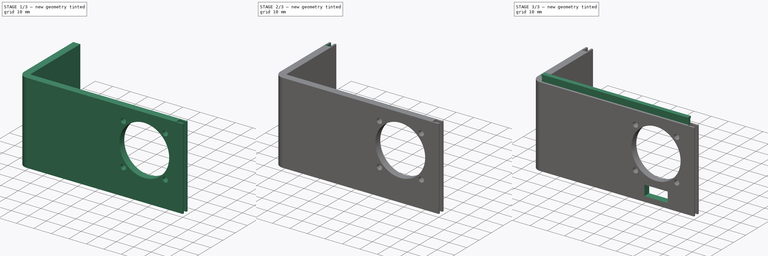
[diagram: build sequence overview — one tinted view per stage of 3, left to right]
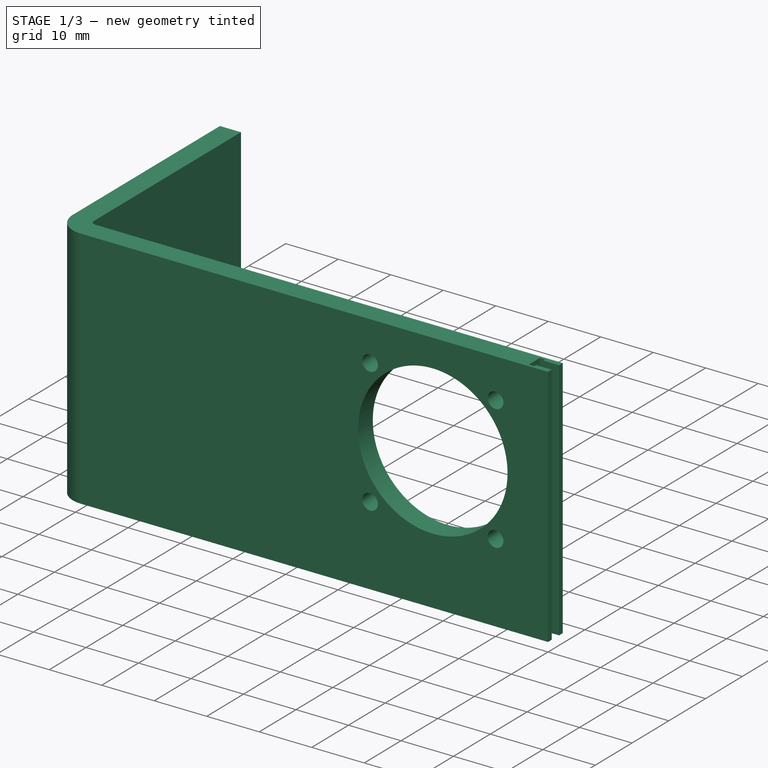
[diagram: stage 1 of 3 — iso view after this stage's code; geometry added in this stage tinted green]
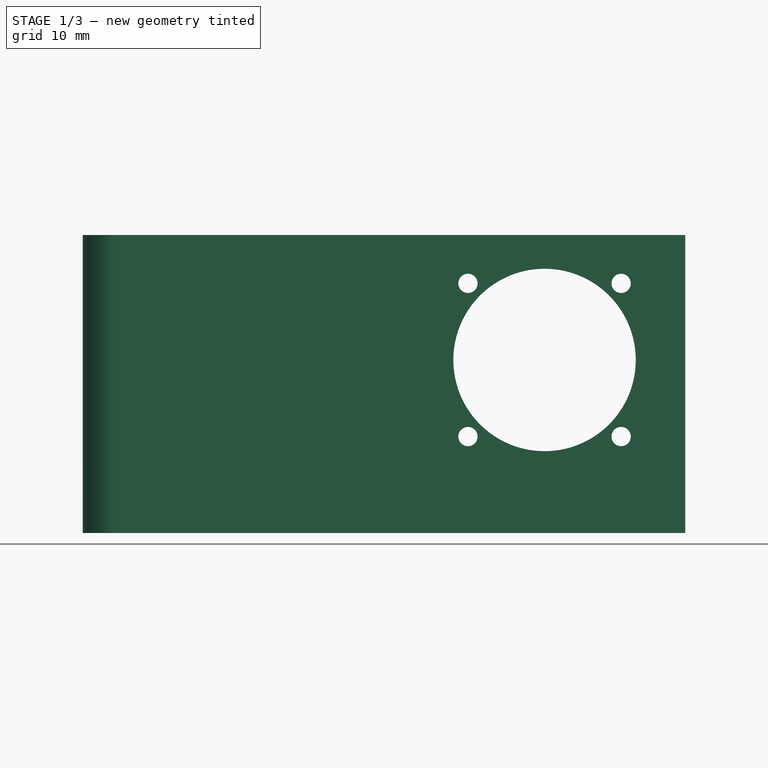
[diagram: stage 1 of 3 — front view after this stage's code; geometry added in this stage tinted green]
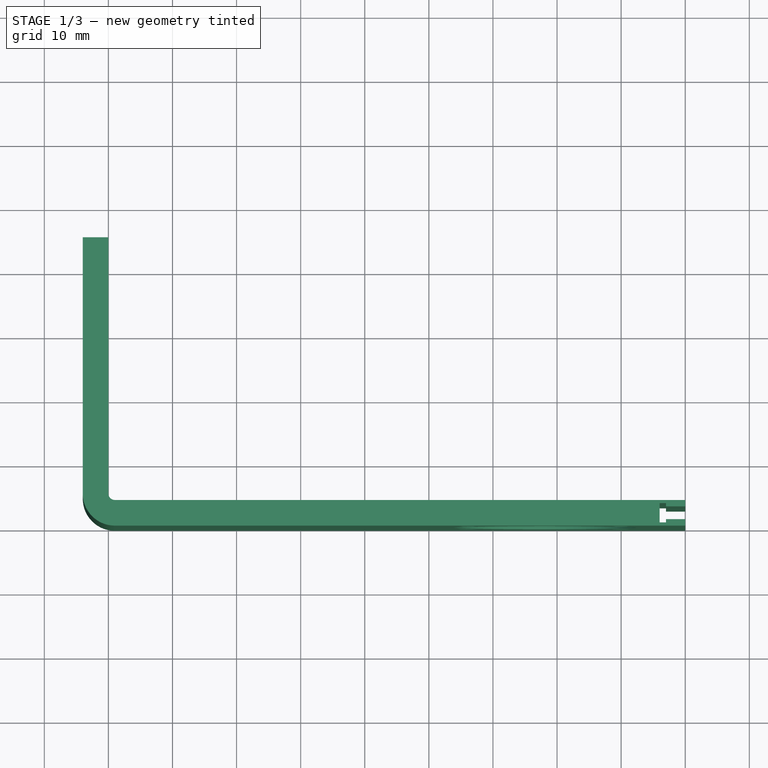
[diagram: stage 1 of 3 — top view after this stage's code; geometry added in this stage tinted green]
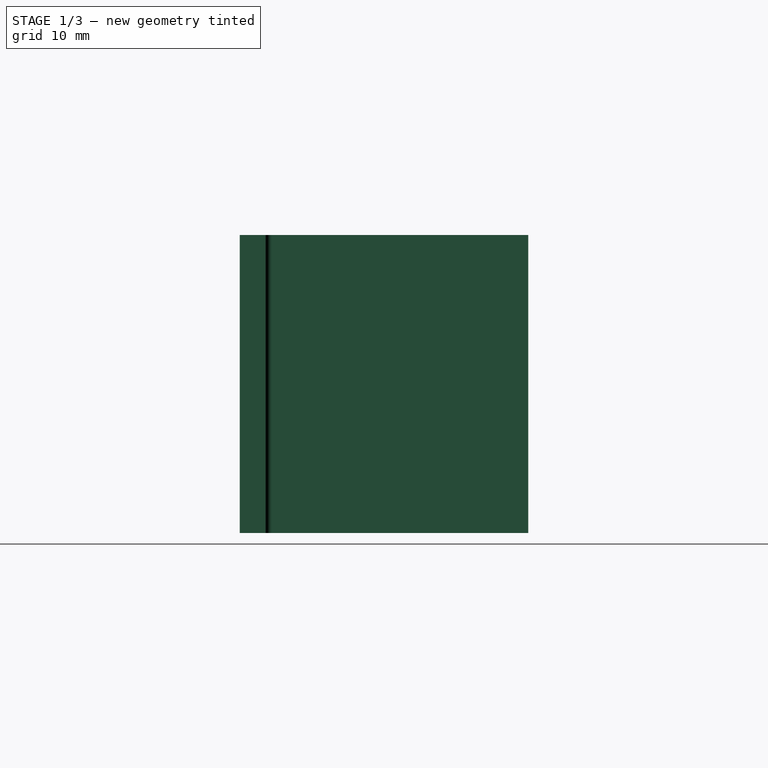
[diagram: stage 1 of 3 — right view after this stage's code; geometry added in this stage tinted green]
FCSTD DOCUMENT  (FreeCAD 1.0R38641 +468 (Git))
Label: focuser-box-side-r
License: All rights reserved
LicenseURL: https://en.wikipedia.org/wiki/All_rights_reserved
objects: Sketcher::SketchObject×8, PartDesign::Pocket×6, PartDesign::Pad×2, PartDesign::Body×1
note: 41 computed .brp shape members not serialized (recipe doc carries the construction recipe); baked Part::Feature solids carry a one-line shape summary decoded from their .brp

FEATURE [Sketcher::SketchObject] Sketch  label="front-space"
  ArcFitTolerance = 1e-06
  AttachmentSupport = -> [XY_Plane013]
  FullyConstrained = true
  MakeInternals = false
  MapMode = 5
  sketch-geometry (4):
    g0: LineSegment StartX=-91 StartY=45 StartZ=0 EndX=-91 EndY=10 EndZ=0
    g1: LineSegment StartX=-91 StartY=10 StartZ=0 EndX=-93 EndY=10 EndZ=0
    g2: LineSegment StartX=-93 StartY=10 StartZ=0 EndX=-93 EndY=45 EndZ=0
    g3: LineSegment StartX=-93 StartY=45 StartZ=0 EndX=-91 EndY=45 EndZ=0
  constraints (12):
    c: Coincident(g0,g1)
    c: Coincident(g1,g2)
    c: Coincident(g2,g3)
    c: Coincident(g3,g0)
    c: Vertical(g0)
    c: Vertical(g2)
    c: Horizontal(g1)
    c: Horizontal(g3)
    c: Distance(g0,g2) = 2
    c: Distance(g1,g3) = 35
    c: DistanceY(g-1,g1) = 10
    c: DistanceX(g0,g-1) = 91
FEATURE [Sketcher::SketchObject] Sketch112  label="r-side-wall"
  ArcFitTolerance = 1e-06
  AttachmentSupport = -> [XY_Plane013]
  FullyConstrained = true
  MakeInternals = false
  MapMode = 5
  sketch-geometry (8):
    g0: LineSegment StartX=0 StartY=0 StartZ=0 EndX=-89 EndY=0 EndZ=0
    g1: LineSegment StartX=0 StartY=4 StartZ=0 EndX=-89 EndY=4 EndZ=0
    g2: LineSegment StartX=0 StartY=4 StartZ=0 EndX=0 EndY=0 EndZ=0
    g3: ArcOfCircle CenterX=-89 CenterY=5 CenterZ=0 NormalX=0 NormalY=0 NormalZ=1 AngleXU=0 Radius=1 StartAngle=3.14159 EndAngle=4.71239
    g4: ArcOfCircle CenterX=-89 CenterY=5 CenterZ=0 NormalX=0 NormalY=0 NormalZ=1 AngleXU=0 Radius=5 StartAngle=3.14159 EndAngle=4.71239
    g5: LineSegment StartX=-94 StartY=5 StartZ=0 EndX=-94 EndY=45 EndZ=0
    g6: LineSegment StartX=-90 StartY=5 StartZ=0 EndX=-90 EndY=45 EndZ=0
    g7: LineSegment StartX=-94 StartY=45 StartZ=0 EndX=-90 EndY=45 EndZ=0
  constraints (25):
    c: Distance(g0) = 89
    c: Coincident(g0,g-1)
    c: PointOnObject(g0,g-1)
    c: Distance(g1) = 89
    c: Horizontal(g1)
    c: PointOnObject(g1,g-2)
    c: Coincident(g2,g1)
    c: Coincident(g2,g0)
    c: DistanceY(g0,g1) = 4
    c: Angle(g3) = 1.5708
    c: Coincident(g3,g1)
    c: Angle(g4) = 1.5708
    c: Coincident(g4,g0)
    c: Distance(g5) = 40
    c: Coincident(g5,g4)
    c: Vertical(g5)
    c: Distance(g6) = 40
    c: Coincident(g6,g3)
    c: Vertical(g6)
    c: DistanceX(g3,g3) = 1
    c: DistanceY(g0,g3) = 5
    c: DistanceX(g4,g3) = 5
    c: DistanceY(g0,g4) = 5
    c: Coincident(g7,g5)
    c: Coincident(g7,g6)
FEATURE [PartDesign::Pad] Pad
  Direction = (0,0,1)
  Length = 46.5
  Length2 = 10
  Profile = -> Sketch112
  ReferenceAxis = -> Sketch112 [N_Axis]
  Refine = true
  Suppressed = false
  Type = 0
FEATURE [Sketcher::SketchObject] Sketch114  label="side-canal"
  ArcFitTolerance = 1e-06
  AttachmentSupport = -> [XY_Plane013]
  FullyConstrained = true
  MakeInternals = false
  MapMode = 5
  sketch-geometry (8):
    g0: LineSegment StartX=-3 StartY=3 StartZ=0 EndX=-3 EndY=1 EndZ=0
    g1: LineSegment StartX=-3 StartY=1 StartZ=0 EndX=0 EndY=1 EndZ=0
    g2: LineSegment StartX=0 StartY=1 StartZ=0 EndX=0 EndY=3 EndZ=0
    g3: LineSegment StartX=0 StartY=3 StartZ=0 EndX=-3 EndY=3 EndZ=0
    g4: LineSegment StartX=-4 StartY=3.5 StartZ=0 EndX=-4 EndY=0.5 EndZ=0
    g5: LineSegment StartX=-4 StartY=0.5 StartZ=0 EndX=-3 EndY=0.5 EndZ=0
    g6: LineSegment StartX=-3 StartY=0.5 StartZ=0 EndX=-3 EndY=3.5 EndZ=0
    g7: LineSegment StartX=-3 StartY=3.5 StartZ=0 EndX=-4 EndY=3.5 EndZ=0
  constraints (24):
    c: Coincident(g0,g1)
    c: Coincident(g1,g2)
    c: Coincident(g2,g3)
    c: Coincident(g3,g0)
    c: Vertical(g0)
    c: Vertical(g2)
    c: Horizontal(g1)
    c: Horizontal(g3)
    c: Distance(g0,g2) = 3
    c: Distance(g1,g3) = 2
    c: DistanceY(g-1,g1) = 1
    c: DistanceX(g1,g-1) = 0
    c: Coincident(g4,g5)
    c: Coincident(g5,g6)
    c: Coincident(g6,g7)
    c: Coincident(g7,g4)
    c: Vertical(g4)
    c: Vertical(g6)
    c: Horizontal(g5)
    c: Horizontal(g7)
    c: Distance(g4,g6) = 1
    c: Distance(g5,g7) = 3
    c: DistanceY(g0,g6) = 0.5
    c: DistanceX(g6,g0) = 0
FEATURE [PartDesign::Pocket] Pocket
  BaseFeature = -> Pad
  Direction = (0,0,-1)
  Length = 5
  Length2 = 5
  Profile = -> Sketch114
  ReferenceAxis = -> Sketch114 [N_Axis]
  Refine = true
  Reversed = true
  Suppressed = false
  Type = 1
FEATURE [Sketcher::SketchObject] Sketch116  label="fan"
  ArcFitTolerance = 1e-06
  AttachmentSupport = -> [XZ_Plane013]
  FullyConstrained = true
  MakeInternals = false
  MapMode = 5
  Placement = pos=(0,0,0) rot=(1,0,0;1.5708rad)
  sketch-geometry (5):
    g0: Circle CenterX=-21.95 CenterY=27 CenterZ=0 NormalX=0 NormalY=0 NormalZ=1 AngleXU=0 Radius=14.23
    g1: Circle CenterX=-10 CenterY=38.95 CenterZ=0 NormalX=0 NormalY=0 NormalZ=1 AngleXU=0 Radius=1.5
    g2: Circle CenterX=-33.9 CenterY=38.95 CenterZ=0 NormalX=0 NormalY=0 NormalZ=1 AngleXU=0 Radius=1.5
    g3: Circle CenterX=-33.9 CenterY=15.05 CenterZ=0 NormalX=0 NormalY=0 NormalZ=1 AngleXU=0 Radius=1.5
    g4: Circle CenterX=-10 CenterY=15.05 CenterZ=0 NormalX=0 NormalY=0 NormalZ=1 AngleXU=0 Radius=1.5
  constraints (15):
    c: Diameter(g0) = 28.46
    c: DistanceY(g-1,g0) = 27
    c: DistanceX(g0,g-1) = 21.95
    c: Diameter(g1) = 3
    c: DistanceX(g1,g-1) = 10
    c: DistanceY(g-1,g1) = 38.95
    c: Diameter(g2) = 3
    c: DistanceY(g1,g2) = 0
    c: DistanceX(g2,g-1) = 33.9
    c: Diameter(g3) = 3
    c: DistanceX(g3,g2) = 0
    c: Diameter(g4) = 3
    c: DistanceX(g1,g4) = 0
    c: DistanceY(g-1,g3) = 15.05
    c: DistanceY(g3,g4) = 0
FEATURE [PartDesign::Pocket] Pocket001
  BaseFeature = -> Pocket
  Direction = (0,1,-2e-16)
  Length = 5
  Length2 = 5
  Profile = -> Sketch116
  ReferenceAxis = -> Sketch116 [N_Axis]
  Refine = true
  Suppressed = false
  Type = 0
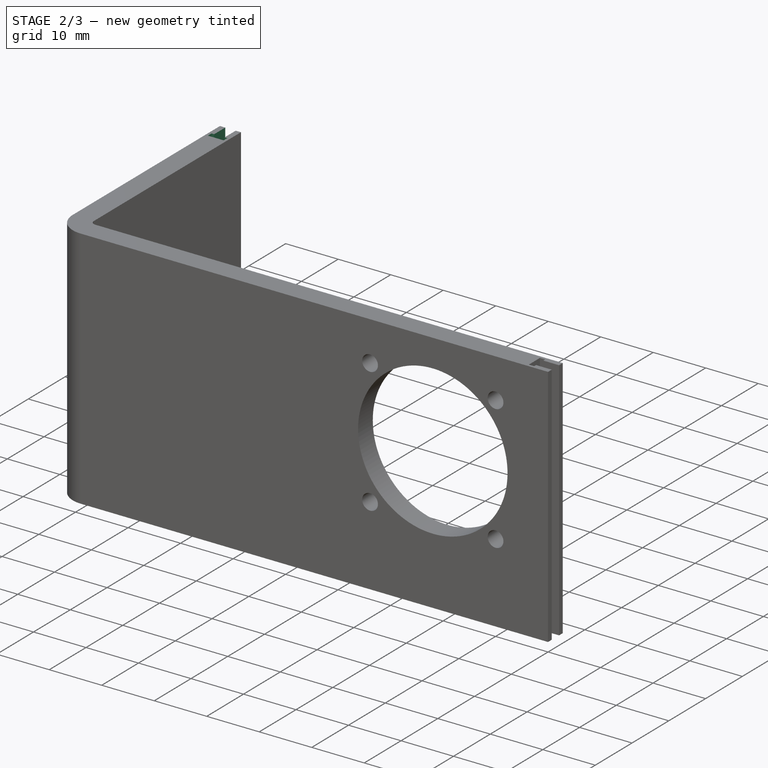
[diagram: stage 2 of 3 — iso view after this stage's code; geometry added in this stage tinted green]
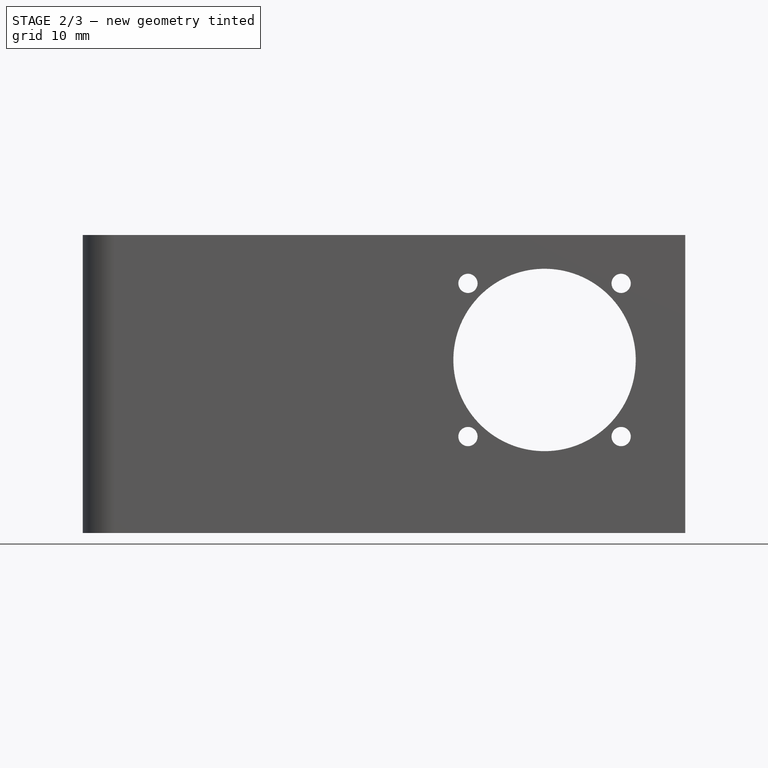
[diagram: stage 2 of 3 — front view after this stage's code; geometry added in this stage tinted green]
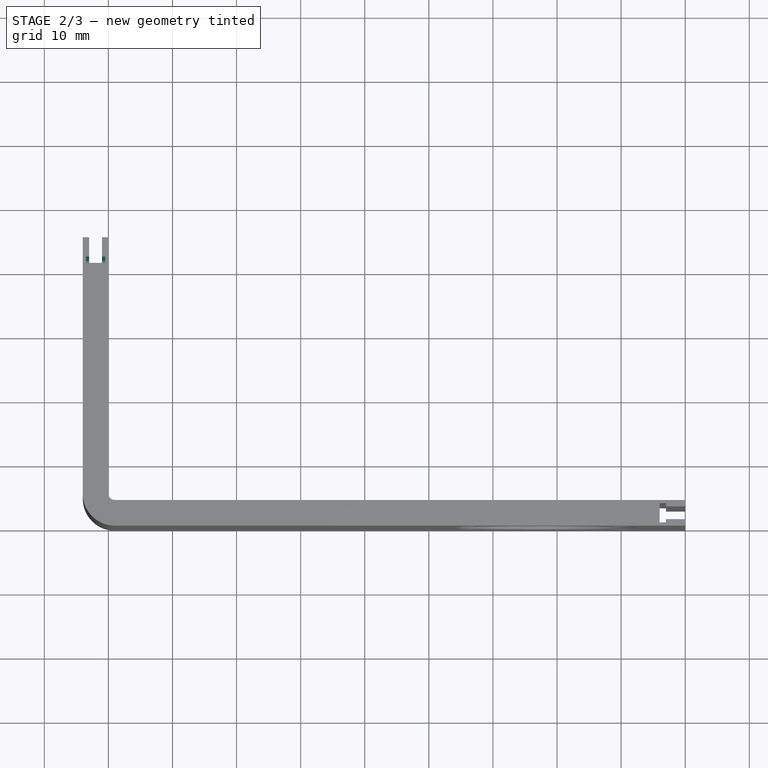
[diagram: stage 2 of 3 — top view after this stage's code; geometry added in this stage tinted green]
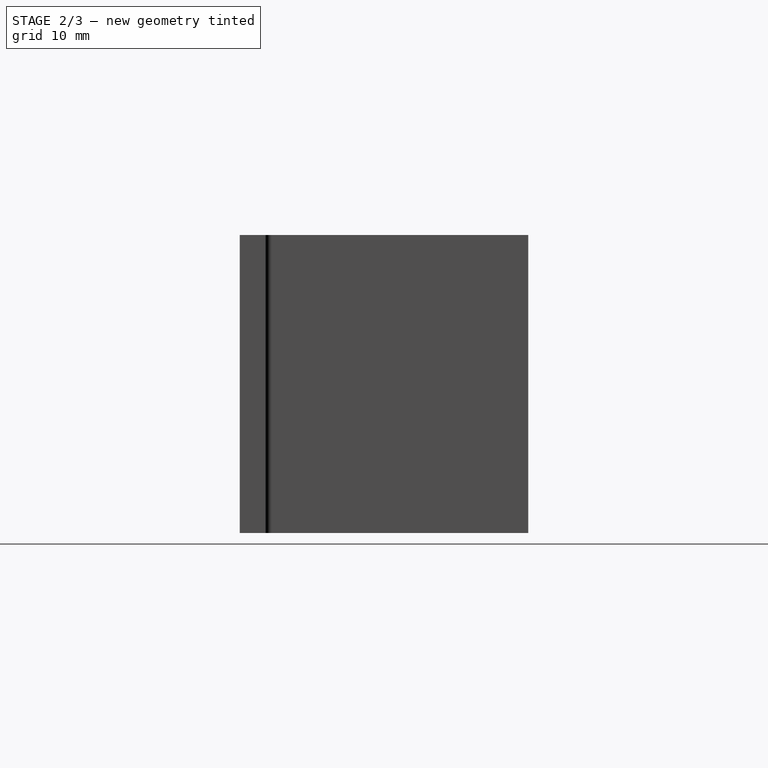
[diagram: stage 2 of 3 — right view after this stage's code; geometry added in this stage tinted green]
FEATURE [PartDesign::Pocket] Pocket002
  BaseFeature = -> Pocket001
  Direction = (0,0,-1)
  Length = 7
  Length2 = 5
  Profile = -> Sketch
  ReferenceAxis = -> Sketch [N_Axis]
  Refine = true
  Reversed = true
  Suppressed = false
  Type = 0
FEATURE [Sketcher::SketchObject] Sketch117  label="front-canal"
  ArcFitTolerance = 1e-06
  FullyConstrained = true
  MakeInternals = false
  MapMode = 5
  sketch-geometry (8):
    g0: LineSegment StartX=-91 StartY=45 StartZ=0 EndX=-91 EndY=42 EndZ=0
    g1: LineSegment StartX=-91 StartY=42 StartZ=0 EndX=-93 EndY=42 EndZ=0
    g2: LineSegment StartX=-93 StartY=42 StartZ=0 EndX=-93 EndY=45 EndZ=0
    g3: LineSegment StartX=-93 StartY=45 StartZ=0 EndX=-91 EndY=45 EndZ=0
    g4: LineSegment StartX=-90.5 StartY=42 StartZ=0 EndX=-93.5 EndY=42 EndZ=0
    g5: LineSegment StartX=-93.5 StartY=42 StartZ=0 EndX=-93.5 EndY=41 EndZ=0
    g6: LineSegment StartX=-93.5 StartY=41 StartZ=0 EndX=-90.5 EndY=41 EndZ=0
    g7: LineSegment StartX=-90.5 StartY=41 StartZ=0 EndX=-90.5 EndY=42 EndZ=0
  constraints (24):
    c: Coincident(g0,g1)
    c: Coincident(g1,g2)
    c: Coincident(g2,g3)
    c: Coincident(g3,g0)
    c: Vertical(g0)
    c: Vertical(g2)
    c: Horizontal(g1)
    c: Horizontal(g3)
    c: Distance(g0,g2) = 2
    c: Distance(g1,g3) = 3
    c: DistanceY(g-1,g2) = 45
    c: Coincident(g4,g5)
    c: Coincident(g5,g6)
    c: Coincident(g6,g7)
    c: Coincident(g7,g4)
    c: Horizontal(g4)
    c: Horizontal(g6)
    c: Vertical(g5)
    c: Vertical(g7)
    c: Distance(g5,g7) = 3
    c: Distance(g4,g6) = 1
    c: DistanceY(g4,g1) = 0
    c: DistanceX(g4,g1) = 0.5
    c: DistanceX(g0,g-1) = 91
FEATURE [PartDesign::Pocket] Pocket003
  BaseFeature = -> Pocket002
  Direction = (0,0,-1)
  Length = 47
  Length2 = -7
  Profile = -> Sketch117
  ReferenceAxis = -> Sketch117 [N_Axis]
  Refine = true
  Reversed = true
  Suppressed = false
  Type = 4
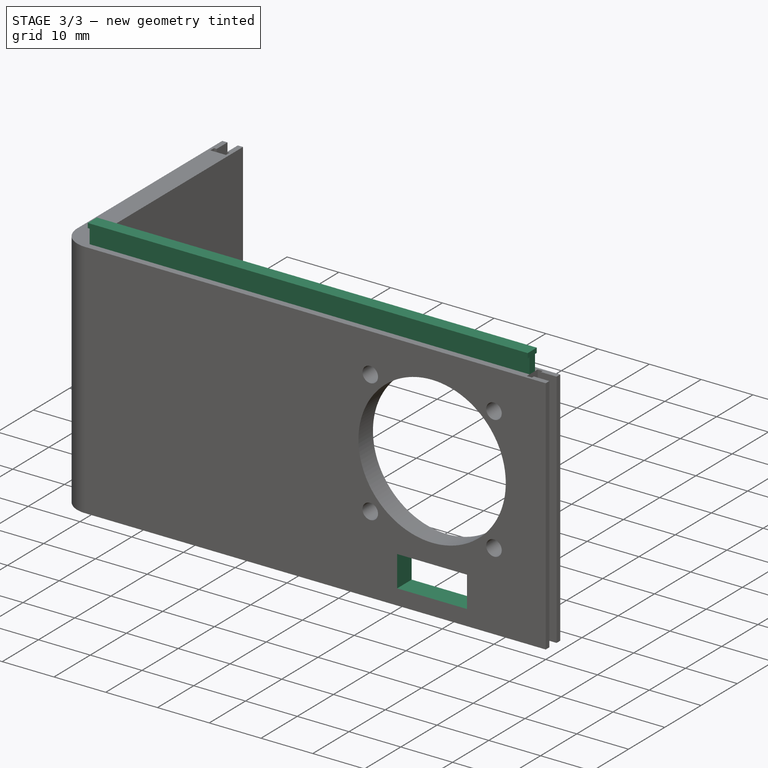
[diagram: stage 3 of 3 — iso view after this stage's code; geometry added in this stage tinted green]
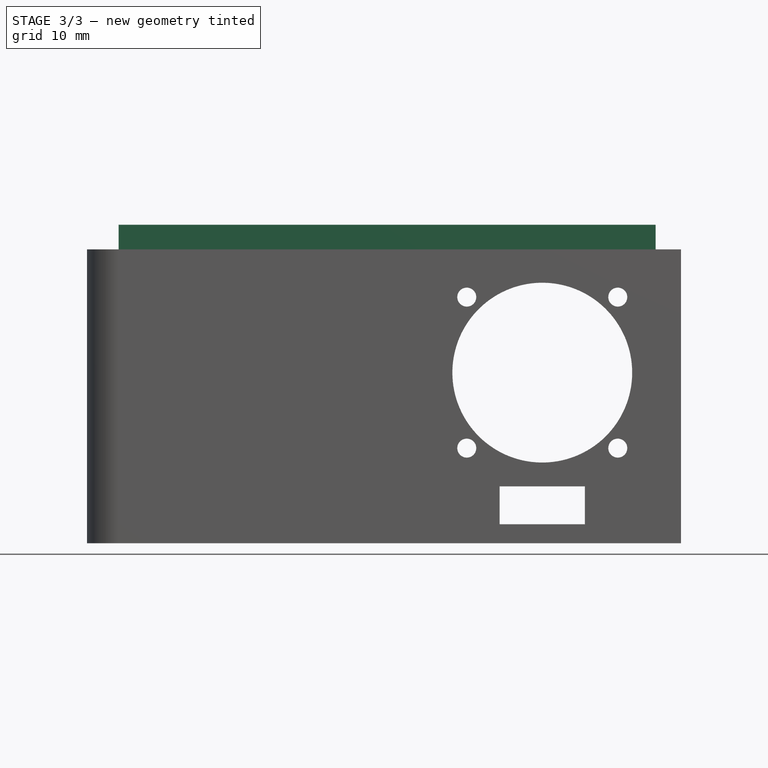
[diagram: stage 3 of 3 — front view after this stage's code; geometry added in this stage tinted green]
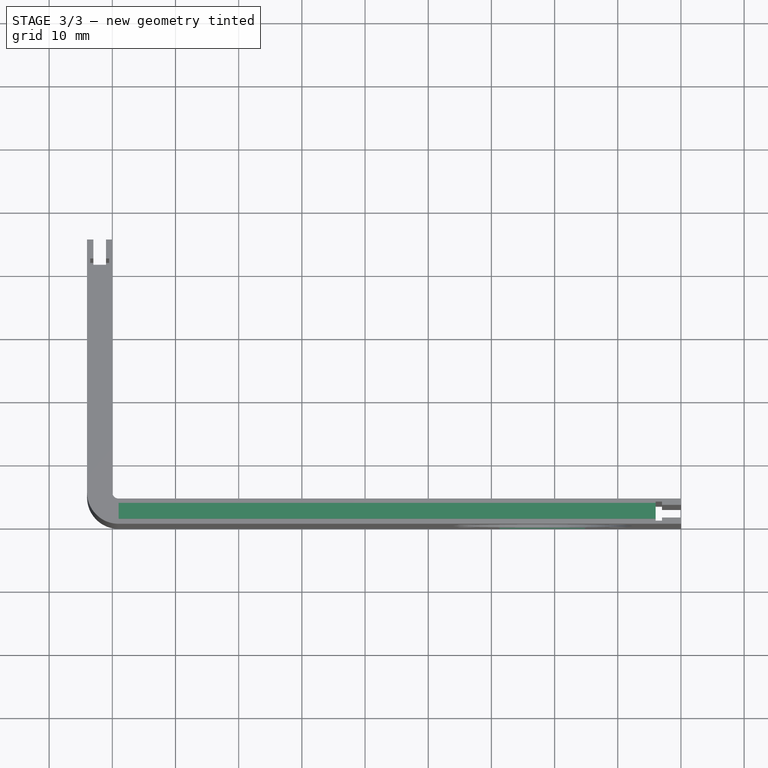
[diagram: stage 3 of 3 — top view after this stage's code; geometry added in this stage tinted green]
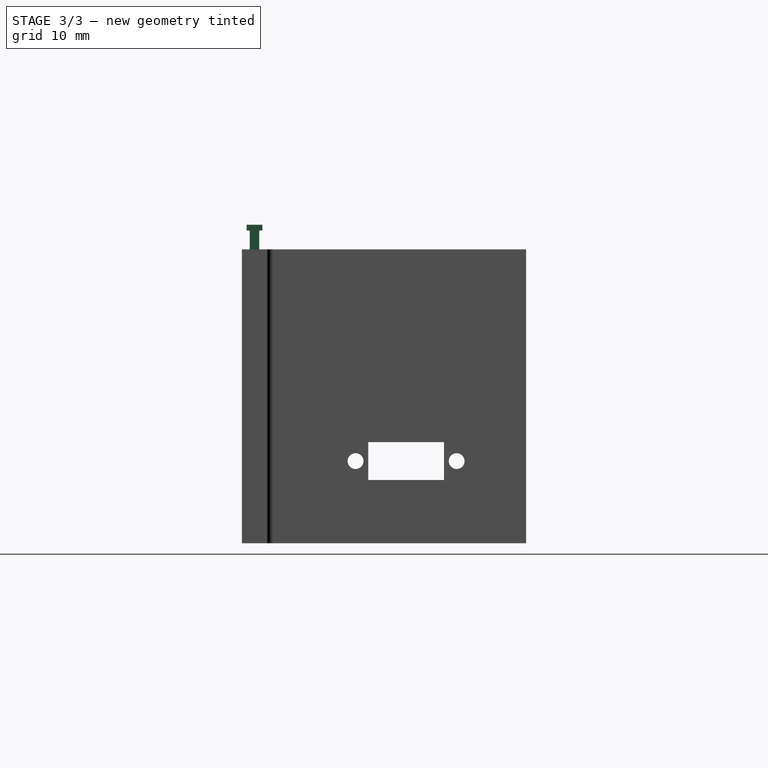
[diagram: stage 3 of 3 — right view after this stage's code; geometry added in this stage tinted green]
FEATURE [Sketcher::SketchObject] Sketch118  label="usb-hole"
  ArcFitTolerance = 1e-06
  AttachmentSupport = -> [YZ_Plane013]
  FullyConstrained = true
  MakeInternals = false
  MapMode = 5
  Placement = pos=(0,0,0) rot=(0.57735,0.57735,0.57735;2.0944rad)
  sketch-geometry (6):
    g0: LineSegment StartX=20 StartY=16 StartZ=0 EndX=20 EndY=10 EndZ=0
    g1: LineSegment StartX=20 StartY=10 StartZ=0 EndX=32 EndY=10 EndZ=0
    g2: LineSegment StartX=32 StartY=10 StartZ=0 EndX=32 EndY=16 EndZ=0
    g3: LineSegment StartX=32 StartY=16 StartZ=0 EndX=20 EndY=16 EndZ=0
    g4: Circle CenterX=34 CenterY=13 CenterZ=0 NormalX=0 NormalY=0 NormalZ=1 AngleXU=0 Radius=1.25
    g5: Circle CenterX=18 CenterY=13 CenterZ=0 NormalX=0 NormalY=0 NormalZ=1 AngleXU=0 Radius=1.25
  constraints (18):
    c: Coincident(g0,g1)
    c: Coincident(g1,g2)
    c: Coincident(g2,g3)
    c: Coincident(g3,g0)
    c: Vertical(g0)
    c: Vertical(g2)
    c: Horizontal(g1)
    c: Horizontal(g3)
    c: Distance(g0,g2) = 12
    c: Distance(g1,g3) = 6
    c: DistanceX(g-1,g0) = 20
    c: DistanceY(g-1,g0) = 10
    c: Diameter(g4) = 2.5
    c: DistanceX(g1,g4) = 2
    c: DistanceY(g-1,g4) = 13
    c: Diameter(g5) = 2.5
    c: DistanceY(g4,g5) = 0
    c: DistanceX(g5,g4) = 16
FEATURE [Sketcher::SketchObject] Sketch119  label="top-trail"
  ArcFitTolerance = 1e-06
  AttachmentSupport = -> [YZ_Plane013]
  FullyConstrained = true
  MakeInternals = false
  MapMode = 5
  Placement = pos=(0,0,0) rot=(0.57735,0.57735,0.57735;2.0944rad)
  sketch-geometry (8):
    g0: LineSegment StartX=1.25 StartY=49.5 StartZ=0 EndX=1.25 EndY=46.5 EndZ=0
    g1: LineSegment StartX=1.25 StartY=46.5 StartZ=0 EndX=2.75 EndY=46.5 EndZ=0
    g2: LineSegment StartX=2.75 StartY=46.5 StartZ=0 EndX=2.75 EndY=49.5 EndZ=0
    g3: LineSegment StartX=2.75 StartY=49.5 StartZ=0 EndX=1.25 EndY=49.5 EndZ=0
    g4: LineSegment StartX=0.75 StartY=50.4 StartZ=0 EndX=0.75 EndY=49.5 EndZ=0
    g5: LineSegment StartX=0.75 StartY=49.5 StartZ=0 EndX=3.25 EndY=49.5 EndZ=0
    g6: LineSegment StartX=3.25 StartY=49.5 StartZ=0 EndX=3.25 EndY=50.4 EndZ=0
    g7: LineSegment StartX=3.25 StartY=50.4 StartZ=0 EndX=0.75 EndY=50.4 EndZ=0
  constraints (24):
    c: Coincident(g0,g1)
    c: Coincident(g1,g2)
    c: Coincident(g2,g3)
    c: Coincident(g3,g0)
    c: Vertical(g0)
    c: Vertical(g2)
    c: Horizontal(g1)
    c: Horizontal(g3)
    c: Distance(g0,g2) = 1.5
    c: Distance(g1,g3) = 3
    c: Coincident(g4,g5)
    c: Coincident(g5,g6)
    c: Coincident(g6,g7)
    c: Coincident(g7,g4)
    c: Vertical(g4)
    c: Vertical(g6)
    c: Horizontal(g5)
    c: Horizontal(g7)
    c: Distance(g4,g6) = 2.5
    c: Distance(g5,g7) = 0.9
    c: DistanceY(g0,g4) = 0
    c: DistanceY(g-1,g0) = 46.5
    c: DistanceX(g-1,g0) = 1.25
    c: DistanceX(g2,g5) = 0.5
FEATURE [PartDesign::Pad] Pad001
  BaseFeature = -> Pocket003
  Direction = (1,0,0)
  Length = 89
  Length2 = -4
  Profile = -> Sketch119
  ReferenceAxis = -> Sketch119 [N_Axis]
  Refine = true
  Reversed = true
  Suppressed = false
  Type = 4
FEATURE [PartDesign::Pocket] Pocket004
  BaseFeature = -> Pad001
  Direction = (-1,0,0)
  Length = 5
  Length2 = 5
  Profile = -> Sketch118
  ReferenceAxis = -> Sketch118 [N_Axis]
  Refine = true
  Suppressed = false
  Type = 1
FEATURE [Sketcher::SketchObject] Sketch120  label="motors-holes"
  ArcFitTolerance = 1e-06
  AttachmentSupport = -> [XZ_Plane013]
  FullyConstrained = true
  MakeInternals = false
  MapMode = 5
  Placement = pos=(0,0,0) rot=(1,0,0;1.5708rad)
  sketch-geometry (4):
    g0: LineSegment StartX=-28.7 StartY=9 StartZ=0 EndX=-28.7 EndY=3 EndZ=0
    g1: LineSegment StartX=-28.7 StartY=3 StartZ=0 EndX=-15.2 EndY=3 EndZ=0
    g2: LineSegment StartX=-15.2 StartY=3 StartZ=0 EndX=-15.2 EndY=9 EndZ=0
    g3: LineSegment StartX=-15.2 StartY=9 StartZ=0 EndX=-28.7 EndY=9 EndZ=0
  constraints (12):
    c: Coincident(g0,g1)
    c: Coincident(g1,g2)
    c: Coincident(g2,g3)
    c: Coincident(g3,g0)
    c: Vertical(g0)
    c: Vertical(g2)
    c: Horizontal(g1)
    c: Horizontal(g3)
    c: Distance(g0,g2) = 13.5
    c: Distance(g1,g3) = 6
    c: DistanceY(g-1,g1) = 3
    c: DistanceX(g1,g-1) = 15.2
FEATURE [PartDesign::Pocket] Pocket005
  BaseFeature = -> Pocket004
  Direction = (0,1,-2e-16)
  Length = 5
  Length2 = 5
  Profile = -> Sketch120
  ReferenceAxis = -> Sketch120 [N_Axis]
  Refine = true
  Suppressed = false
  Type = 0
FEATURE [PartDesign::Body] Body013  label="fb-side-r"
  AllowCompound = false
  Group = -> [Sketch112,Sketch114,Sketch116,Sketch117,Sketch,Sketch118,Sketch119,Pad,Pocket,Pocket001,Pocket002,Pocket003,Pad001,Pocket004,Sketch120,Pocket005]
  Origin = -> Origin013
  Tip = -> Pocket005
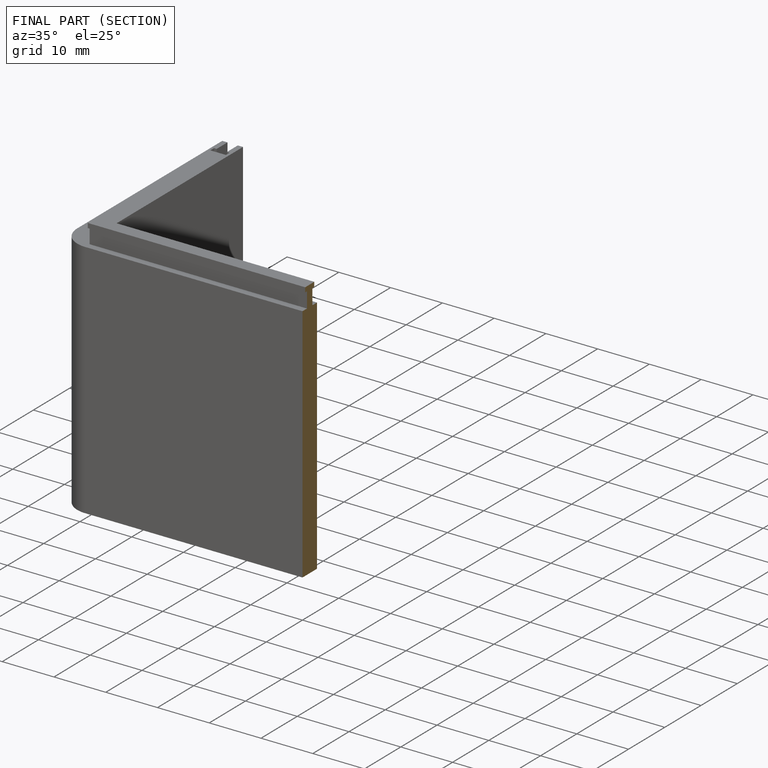
[diagram: finished part — half-section view (interior)]
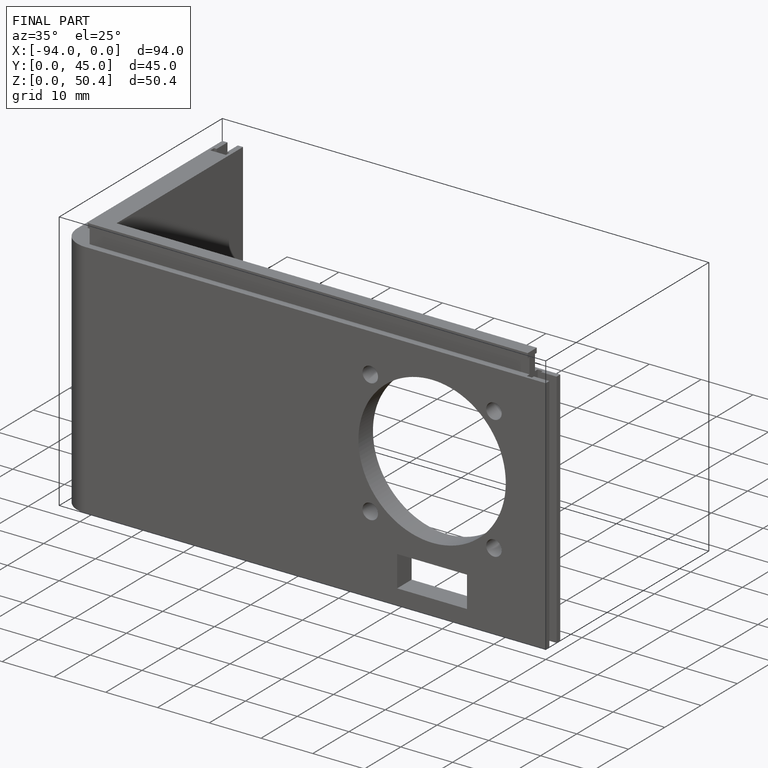
[diagram: finished part — iso view with bounding-box wireframe]
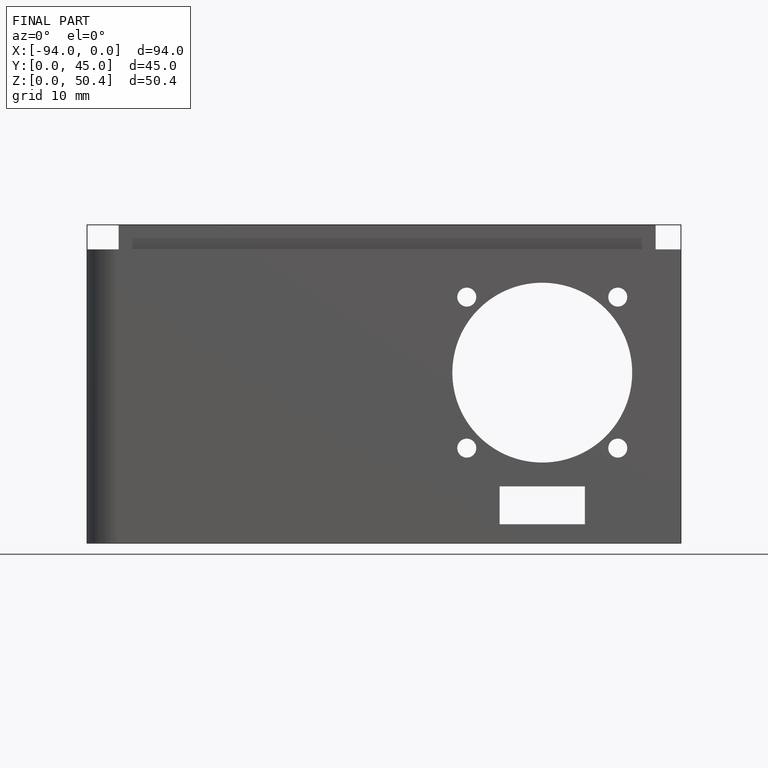
[diagram: finished part — front view with bounding-box wireframe]
